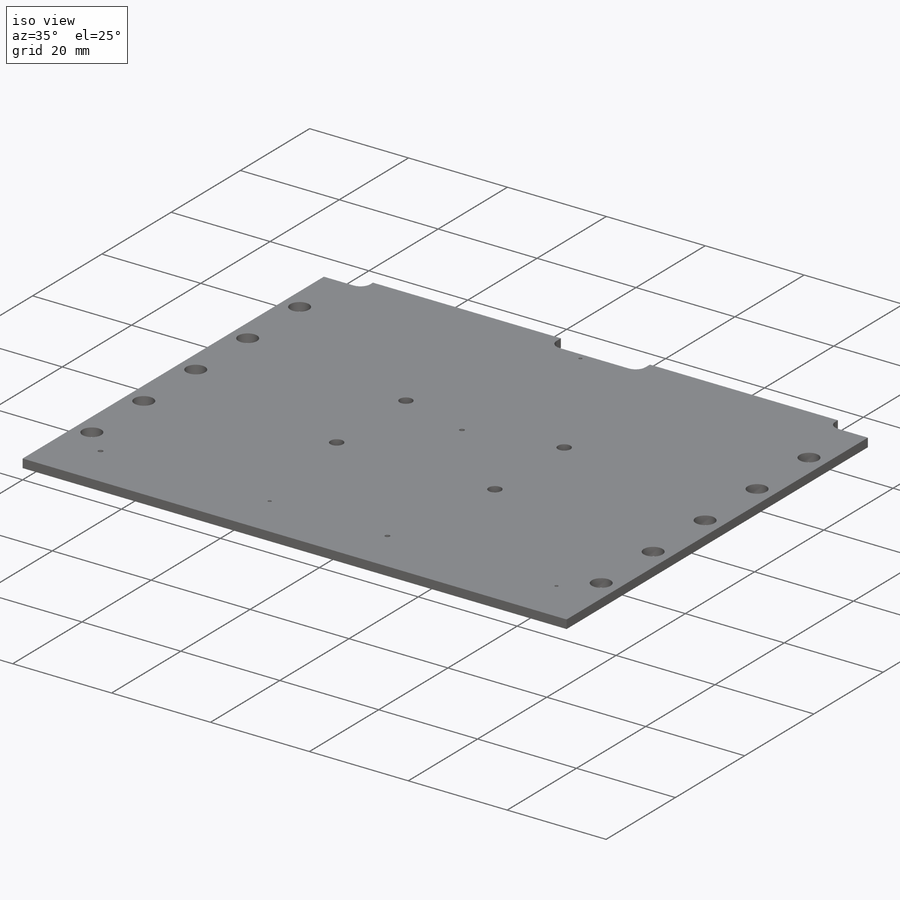
[diagram: iso view]
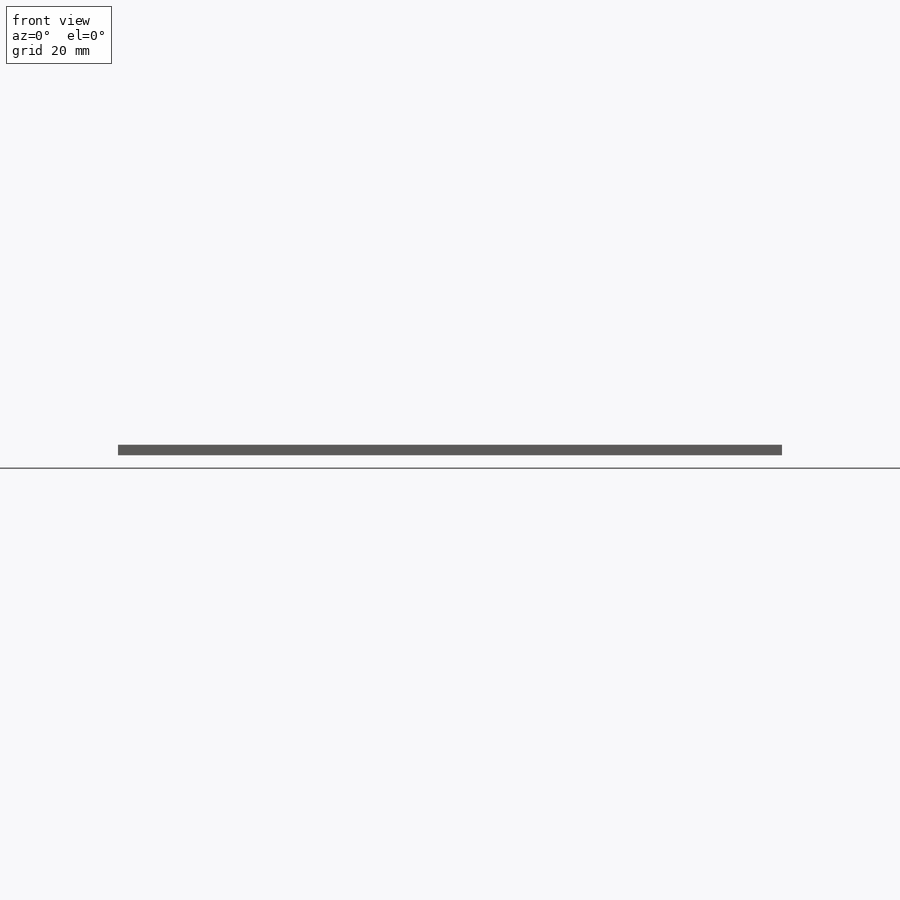
[diagram: front view]
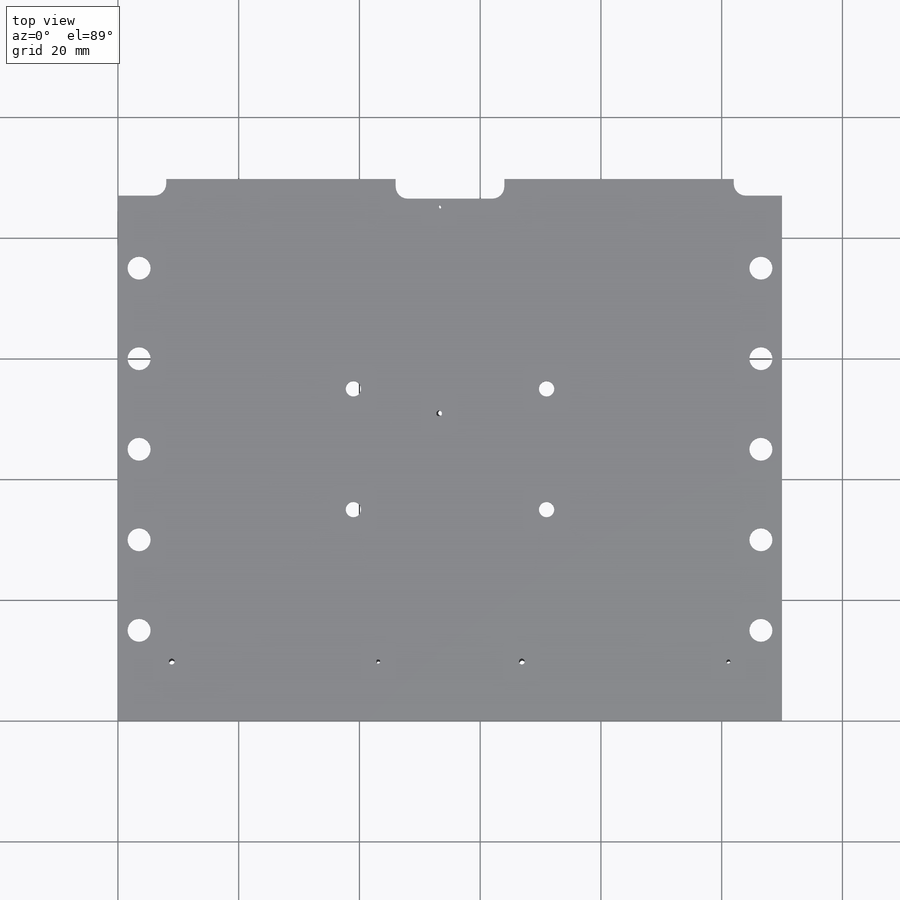
[diagram: top view]
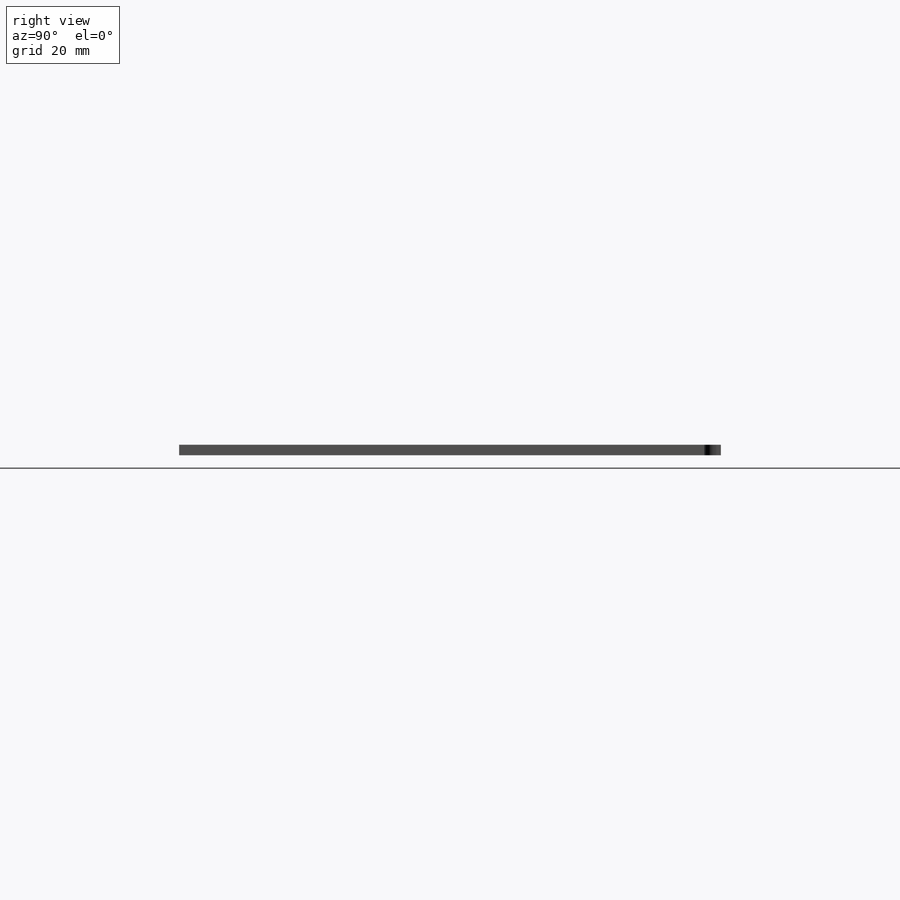
[diagram: right view]
SOLIDWORKS PART (.sldprt)
format: sldprt  version: not decoded by parser v0  size: 312,832 bytes
history: native  units: mm
features: sketch x5, cut_extrude x4, material x1, extrude x1, plane x1 (+13 scaffold rows collapsed)
feature tree (25):
  scaffold x13  (default folders/planes/origin — collapsed)
  material  "Material <not specified>"
  sketch  "Sketch1"  dims[c1.D1=6.0mm c1.D2=14.25mm c2.D1=~8.017542mm c2.D2=14.25mm c3.D1=~2.445304mm c4.D1=45.0deg c5.D1=~16.819978mm c6.D1=135.0deg c7.D1=~1.356207mm c8.D1=135.0deg c9.D1=39.0mm c10.D1=135.0deg c11.D1=~5.535198mm c12.D1=45.0deg c13.D1=90.0mm]
  extrude  "FR4"  Depth=1.7526mm
  plane  "center-of-slot"
  sketch  "Sketch7"  dims[c1.D1=~5.428396mm c2.D1=2.0 c2.D2=5.0]
  cut_extrude  "thermal-wall-holes-sides"  [1 undecoded]
  sketch  "Sketch8"  dims[c1.D1=~5.361356mm c1.D3=~4.159905mm c2.D1=2.0 c2.D2=1.0]
  cut_extrude  "controlled-depth-holes.top"  Depth=1.1176mm
  sketch  "Sketch9"  dims[c1.D1=~5.374099mm c1.D3=~7.337757mm c2.D1=2.0 c2.D2=1.0]
  cut_extrude  "controlled-depth-holes.bottom"  Depth=1.1176mm
  sketch  "Sketch10"  dims[D1=~11.698189mm]
  cut_extrude  "thermal-screw-holes-middle"  [1 undecoded]
decode coverage: 8 of 10 modeling features carry decoded parameters
note: ~ marks probable driven/reference dimensions
note: 2 parameter values undecoded
note: suppression state not decoded; provenance and decode notes live in map.json
